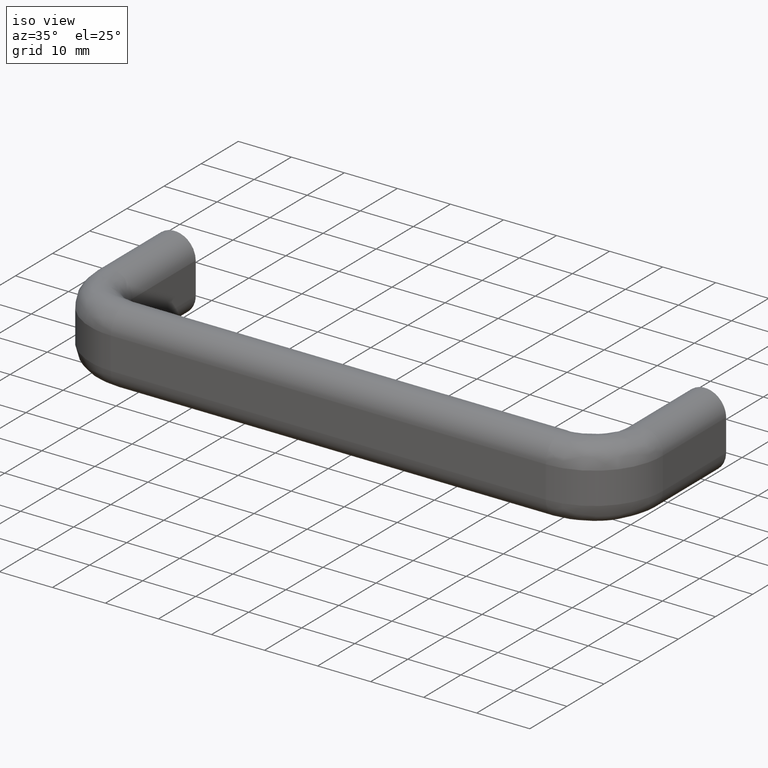
[diagram: clean part render]
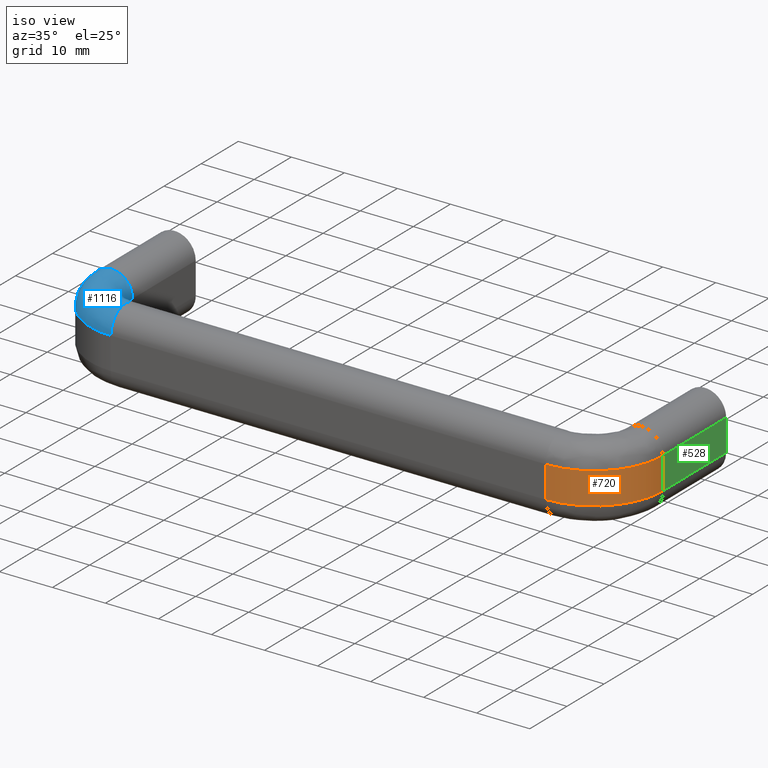
[diagram: same view with three faces highlighted in distinct colors, each labeled with its STEP entity id]
A machine part, iso view with three faces highlighted in distinct colors.
Their STEP definitions:

[orange] entity #720 — the highlighted face is a freeform B-spline surface patch.
#469=CARTESIAN_POINT('',(104.0,-17.0,-3.0));
#470=VERTEX_POINT('',#469);
#514=CARTESIAN_POINT('',(104.0,-17.0,3.0));
#515=VERTEX_POINT('',#514);
#521=CARTESIAN_POINT('',(104.0,-17.0,3.0));
#522=CARTESIAN_POINT('',(104.0,-17.0,-3.0));
#523=QUASI_UNIFORM_CURVE('',1,(#521,#522),.UNSPECIFIED.,.F.,.U.);
#524=EDGE_CURVE('',#515,#470,#523,.T.);
#634=CARTESIAN_POINT('',(91.0,-30.0,-3.0));
#635=VERTEX_POINT('',#634);
#636=CARTESIAN_POINT('',(91.0,-30.0,-3.0));
#637=CARTESIAN_POINT('',(104.0,-29.999999999999993,-3.000000000000000));
#638=CARTESIAN_POINT('',(104.0,-17.0,-3.0));
#646=(BOUNDED_CURVE()B_SPLINE_CURVE(2,(#636,#637,#638),.UNSPECIFIED.,.F.,.U.)CURVE()GEOMETRIC_REPRESENTATION_ITEM()QUASI_UNIFORM_CURVE()RATIONAL_B_SPLINE_CURVE((1.0,0.707106781186547,1.0))REPRESENTATION_ITEM(''));
#647=EDGE_CURVE('',#635,#470,#646,.T.);
#682=CARTESIAN_POINT('',(103.995545224682300,-16.659699671997640,-3.150000000000001));
#683=CARTESIAN_POINT('',(103.995545224682300,-16.659699671997640,3.153750000000001));
#684=CARTESIAN_POINT('',(104.370399382161420,-30.974802407211385,-3.150000000000001));
#685=CARTESIAN_POINT('',(104.370399382161420,-30.974802407211385,3.153750000000001));
#686=CARTESIAN_POINT('',(90.085839016862195,-29.967818231950567,-3.150000000000001));
#687=CARTESIAN_POINT('',(90.085839016862195,-29.967818231950567,3.153750000000001));
#695=(BOUNDED_SURFACE()B_SPLINE_SURFACE(1,2,((#682,#684,#686),(#683,#685,#687)),.UNSPECIFIED.,.F.,.F.,.U.)B_SPLINE_SURFACE_WITH_KNOTS((2,2),(3,3),(0.0,6.303750000000002),(0.0,23.024850473148739),.UNSPECIFIED.)GEOMETRIC_REPRESENTATION_ITEM()RATIONAL_B_SPLINE_SURFACE(((1.0,0.670944223154768,0.996392648609106),(1.0,0.670944223154768,0.996392648609106)))REPRESENTATION_ITEM('')SURFACE());
#696=ORIENTED_EDGE('',*,*,#647,.T.);
#697=ORIENTED_EDGE('',*,*,#524,.F.);
#698=CARTESIAN_POINT('',(91.0,-30.0,3.0));
#699=VERTEX_POINT('',#698);
#700=CARTESIAN_POINT('',(91.0,-30.0,3.0));
#701=CARTESIAN_POINT('',(104.0,-29.999999999999993,3.000000000000000));
#702=CARTESIAN_POINT('',(104.0,-17.0,3.0));
#710=(BOUNDED_CURVE()B_SPLINE_CURVE(2,(#700,#701,#702),.UNSPECIFIED.,.F.,.U.)CURVE()GEOMETRIC_REPRESENTATION_ITEM()QUASI_UNIFORM_CURVE()RATIONAL_B_SPLINE_CURVE((1.0,0.707106781186547,1.0))REPRESENTATION_ITEM(''));
#711=EDGE_CURVE('',#699,#515,#710,.T.);
#712=ORIENTED_EDGE('',*,*,#711,.F.);
#713=CARTESIAN_POINT('',(91.0,-30.0,3.0));
#714=CARTESIAN_POINT('',(91.0,-30.0,-3.0));
#715=QUASI_UNIFORM_CURVE('',1,(#713,#714),.UNSPECIFIED.,.F.,.U.);
#716=EDGE_CURVE('',#699,#635,#715,.T.);
#717=ORIENTED_EDGE('',*,*,#716,.T.);
#718=EDGE_LOOP('',(#696,#697,#712,#717));
#719=FACE_OUTER_BOUND('',#718,.T.);
#720=ADVANCED_FACE('',(#719),#695,.T.);

[blue] entity #1116 — the highlighted face is a freeform B-spline surface patch.
#872=CARTESIAN_POINT('',(9.0,-30.0,3.0));
#873=VERTEX_POINT('',#872);
#907=CARTESIAN_POINT('',(9.0,-22.0,3.0));
#908=VERTEX_POINT('',#907);
#914=CARTESIAN_POINT('',(9.0,-22.0,3.0));
#915=CARTESIAN_POINT('',(9.000000000000002,-22.000000000000007,6.999999999999999));
#916=CARTESIAN_POINT('',(9.0,-26.0,7.0));
#917=CARTESIAN_POINT('',(9.000000000000002,-30.000000000000004,6.999999999999999));
#918=CARTESIAN_POINT('',(9.0,-30.0,3.0));
#926=(BOUNDED_CURVE()B_SPLINE_CURVE(2,(#914,#915,#916,#917,#918),.UNSPECIFIED.,.F.,.U.)B_SPLINE_CURVE_WITH_KNOTS((3,2,3),(0.0,0.500000000000000,1.0),.UNSPECIFIED.)CURVE()GEOMETRIC_REPRESENTATION_ITEM()RATIONAL_B_SPLINE_CURVE((1.0,0.707106781186548,1.0,0.707106781186548,1.0))REPRESENTATION_ITEM(''));
#927=EDGE_CURVE('',#908,#873,#926,.T.);
#1036=CARTESIAN_POINT('',(-4.0,-17.0,3.0));
#1037=VERTEX_POINT('',#1036);
#1038=CARTESIAN_POINT('',(-4.0,-17.0,3.0));
#1039=CARTESIAN_POINT('',(-4.0,-29.999999999999993,3.000000000000000));
#1040=CARTESIAN_POINT('',(9.0,-30.0,3.0));
#1048=(BOUNDED_CURVE()B_SPLINE_CURVE(2,(#1038,#1039,#1040),.UNSPECIFIED.,.F.,.U.)CURVE()GEOMETRIC_REPRESENTATION_ITEM()QUASI_UNIFORM_CURVE()RATIONAL_B_SPLINE_CURVE((1.0,0.707106781186547,1.0))REPRESENTATION_ITEM(''));
#1049=EDGE_CURVE('',#1037,#873,#1048,.T.);
#1059=CARTESIAN_POINT('',(-3.928530903544678,-16.098805277847305,2.435044151234913));
#1060=CARTESIAN_POINT('',(-4.964776603078672,-30.964776217056439,2.435044151234914));
#1061=CARTESIAN_POINT('',(9.901194364774936,-29.928530928455999,2.435044151234913));
#1062=CARTESIAN_POINT('',(-4.582371274599748,-16.053228754426261,7.029078307447322));
#1063=CARTESIAN_POINT('',(-5.671023490987238,-31.671023085442513,7.029078307447320));
#1064=CARTESIAN_POINT('',(9.946770870122160,-30.582371300770916,7.029078307447318));
#1065=CARTESIAN_POINT('',(0.046857478302617,-16.375913253606999,6.999921043424548));
#1066=CARTESIAN_POINT('',(-0.670753478784562,-26.670753211460134,6.999921043424546));
#1067=CARTESIAN_POINT('',(9.624086498905175,-25.953142538948736,6.999921043424547));
#1068=CARTESIAN_POINT('',(4.620964379138461,-16.694755435162634,6.971110965181506));
#1069=CARTESIAN_POINT('',(4.269976562805839,-21.730023306444192,6.971110965181508));
#1070=CARTESIAN_POINT('',(9.305244443789597,-21.379035629299285,6.971110965181504));
#1071=CARTESIAN_POINT('',(3.971702194522093,-16.649498038290940,2.432239444497405));
#1072=CARTESIAN_POINT('',(3.568674811459248,-22.431325038405003,2.432239444497407));
#1073=CARTESIAN_POINT('',(9.350501822714012,-22.028297815166678,2.432239444497407));
#1081=(BOUNDED_SURFACE()B_SPLINE_SURFACE(2,2,((#1059,#1062,#1065,#1068,#1071),(#1060,#1063,#1066,#1069,#1072),(#1061,#1064,#1067,#1070,#1073)),.UNSPECIFIED.,.F.,.F.,.U.)B_SPLINE_SURFACE_WITH_KNOTS((3,3),(3,2,3),(0.0,23.617788545433189),(0.0,7.332065125994673,14.607083844271781),.UNSPECIFIED.)GEOMETRIC_REPRESENTATION_ITEM()RATIONAL_B_SPLINE_SURFACE(((0.913070520886805,0.598155723932868,0.919258316275454,0.600654030901937,0.908208695093714),(0.599179651772745,0.392524706661077,0.603240237457421,0.394164158012868,0.595989200412149),(0.913070509387803,0.598155716399831,0.919258304698524,0.600654023337437,0.908208683655941)))REPRESENTATION_ITEM('')SURFACE());
#1082=ORIENTED_EDGE('',*,*,#1049,.T.);
#1083=ORIENTED_EDGE('',*,*,#927,.F.);
#1084=CARTESIAN_POINT('',(4.0,-17.0,3.0));
#1085=VERTEX_POINT('',#1084);
#1086=CARTESIAN_POINT('',(3.999999999999999,-17.0,3.0));
#1087=CARTESIAN_POINT('',(4.000000000000000,-22.000000000000007,3.0));
#1088=CARTESIAN_POINT('',(9.0,-22.0,3.0));
#1096=(BOUNDED_CURVE()B_SPLINE_CURVE(2,(#1086,#1087,#1088),.UNSPECIFIED.,.F.,.U.)CURVE()GEOMETRIC_REPRESENTATION_ITEM()QUASI_UNIFORM_CURVE()RATIONAL_B_SPLINE_CURVE((1.0,0.707106781186548,1.0))REPRESENTATION_ITEM(''));
#1097=EDGE_CURVE('',#1085,#908,#1096,.T.);
#1098=ORIENTED_EDGE('',*,*,#1097,.F.);
#1099=CARTESIAN_POINT('',(4.0,-17.0,3.0));
#1100=CARTESIAN_POINT('',(4.000000000000000,-17.000000000000004,6.999999999999999));
#1101=CARTESIAN_POINT('',(0.0,-17.0,7.0));
#1102=CARTESIAN_POINT('',(-4.000000000000000,-17.000000000000004,6.999999999999999));
#1103=CARTESIAN_POINT('',(-4.0,-17.0,3.0));
#1111=(BOUNDED_CURVE()B_SPLINE_CURVE(2,(#1099,#1100,#1101,#1102,#1103),.UNSPECIFIED.,.F.,.U.)B_SPLINE_CURVE_WITH_KNOTS((3,2,3),(0.0,0.500000000000000,1.0),.UNSPECIFIED.)CURVE()GEOMETRIC_REPRESENTATION_ITEM()RATIONAL_B_SPLINE_CURVE((1.0,0.707106781186548,1.0,0.707106781186548,1.0))REPRESENTATION_ITEM(''));
#1112=EDGE_CURVE('',#1085,#1037,#1111,.T.);
#1113=ORIENTED_EDGE('',*,*,#1112,.T.);
#1114=EDGE_LOOP('',(#1082,#1083,#1098,#1113));
#1115=FACE_OUTER_BOUND('',#1114,.T.);
#1116=ADVANCED_FACE('',(#1115),#1081,.T.);

[green] entity #528 — the highlighted face is a freeform B-spline surface patch.
#450=CARTESIAN_POINT('',(104.0,0.0,-3.0));
#451=VERTEX_POINT('',#450);
#469=CARTESIAN_POINT('',(104.0,-17.0,-3.0));
#470=VERTEX_POINT('',#469);
#471=CARTESIAN_POINT('',(104.0,-17.0,-3.0));
#472=CARTESIAN_POINT('',(104.0,0.0,-3.0));
#473=QUASI_UNIFORM_CURVE('',1,(#471,#472),.UNSPECIFIED.,.F.,.U.);
#474=EDGE_CURVE('',#470,#451,#473,.T.);
#501=CARTESIAN_POINT('',(104.0,-17.849149967050710,3.299699988370836));
#502=CARTESIAN_POINT('',(104.0,-17.849149967050710,-3.299700149303376));
#503=CARTESIAN_POINT('',(104.0,0.849150423026235,3.299699988370836));
#504=CARTESIAN_POINT('',(104.0,0.849150423026235,-3.299700149303376));
#505=B_SPLINE_SURFACE_WITH_KNOTS('',1,1,((#501,#503),(#502,#504)),.UNSPECIFIED.,.F.,.F.,.U.,(2,2),(2,2),(0.0,6.599400137674213),(0.0,18.698300390076941),.UNSPECIFIED.);
#506=ORIENTED_EDGE('',*,*,#474,.T.);
#507=CARTESIAN_POINT('',(104.0,0.0,3.0));
#508=VERTEX_POINT('',#507);
#509=CARTESIAN_POINT('',(104.0,0.0,3.0));
#510=CARTESIAN_POINT('',(104.0,0.0,-3.0));
#511=QUASI_UNIFORM_CURVE('',1,(#509,#510),.UNSPECIFIED.,.F.,.U.);
#512=EDGE_CURVE('',#508,#451,#511,.T.);
#513=ORIENTED_EDGE('',*,*,#512,.F.);
#514=CARTESIAN_POINT('',(104.0,-17.0,3.0));
#515=VERTEX_POINT('',#514);
#516=CARTESIAN_POINT('',(104.0,-17.0,3.0));
#517=CARTESIAN_POINT('',(104.0,0.0,3.0));
#518=QUASI_UNIFORM_CURVE('',1,(#516,#517),.UNSPECIFIED.,.F.,.U.);
#519=EDGE_CURVE('',#515,#508,#518,.T.);
#520=ORIENTED_EDGE('',*,*,#519,.F.);
#521=CARTESIAN_POINT('',(104.0,-17.0,3.0));
#522=CARTESIAN_POINT('',(104.0,-17.0,-3.0));
#523=QUASI_UNIFORM_CURVE('',1,(#521,#522),.UNSPECIFIED.,.F.,.U.);
#524=EDGE_CURVE('',#515,#470,#523,.T.);
#525=ORIENTED_EDGE('',*,*,#524,.T.);
#526=EDGE_LOOP('',(#506,#513,#520,#525));
#527=FACE_OUTER_BOUND('',#526,.T.);
#528=ADVANCED_FACE('',(#527),#505,.T.);